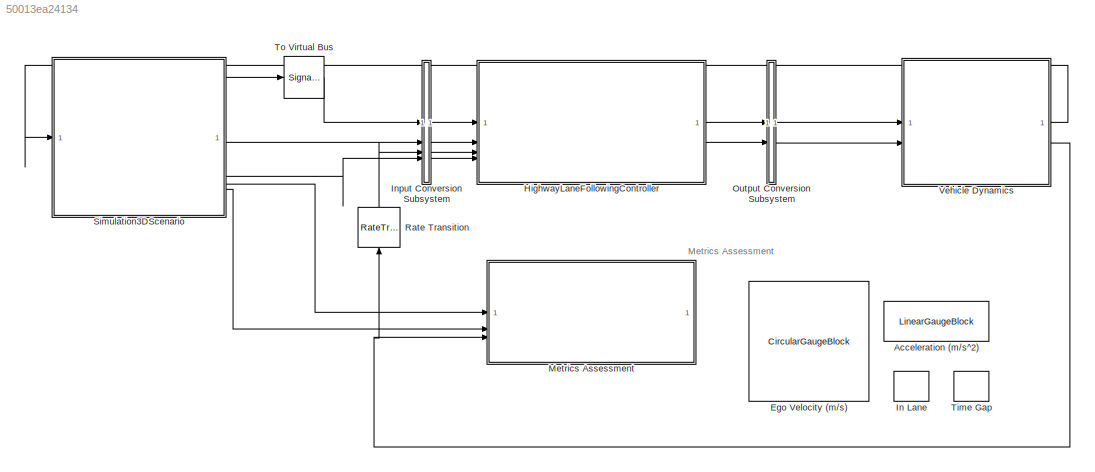
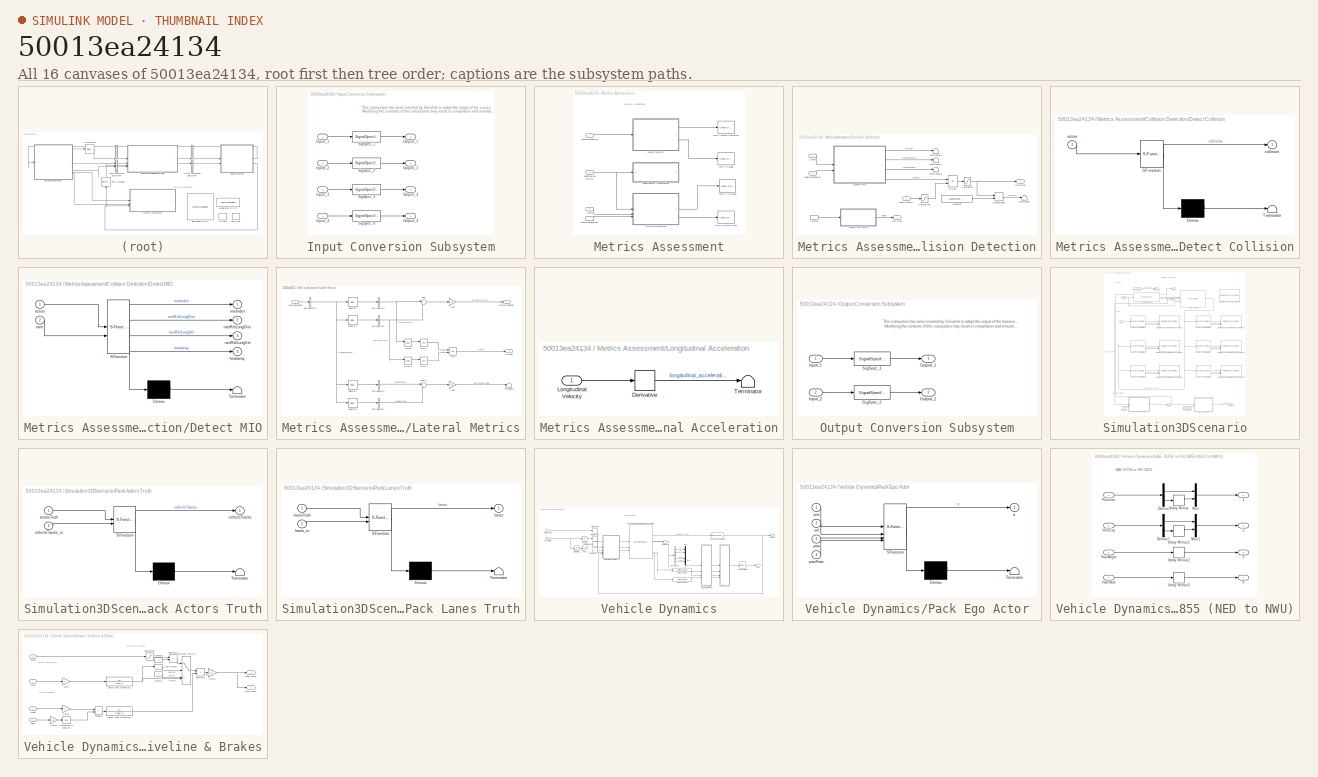
[diagram: thumbnail index - all 16 canvases of the model, root first then tree order]
MODEL slx_50013ea24134
KIND model
CONFIG AbsTol = auto
CONFIG EnableMultiTasking = on
CONFIG FixedStep = auto
CONFIG MaxStep = auto
CONFIG MinStep = auto
CONFIG PostLoadFcn = [scenario, assessment] = scenario_LFACC_03_Curve_StopnGo();\nvehSim3D=  vehicleSim3DParams(scenario);\negoVehDyn = egoVehicleDynamicsParams(scenario);\nv_set=  egoVehDyn.VLong0;\n\n%%\nblkSim3DConfig = "HighwayLaneFollowingControllerAssessment/Simulation3DScenario/Simulation3DSceneConfiguration";\nsetSim3DSceneDesc(blkSim3DConfig, scenario);\ninit_simulation_vars;
CONFIG RelTol = 1e-3
CONFIG SampleTimeConstraint = Unconstrained
CONFIG SolverName = ode23
CONFIG StartTime = 0.0
CONFIG StopTime = 10.0
BLOCK [LinearGaugeBlock] Acceleration (m//s^2)
  LabelPosition = Hide
  ScaleMax = 6
  ScaleMin = -6
BLOCK [CircularGaugeBlock] Ego Velocity (m//s)
  LabelPosition = Hide
  ScaleMax = 50
BLOCK [ModelReference] HighwayLaneFollowingController
  ModelNameDialog = HighwayLaneFollowingController
  ModelReferenceVersion = 8.0
BLOCK [LampBlock] In Lane
  LabelPosition = Hide
BLOCK [SubSystem] Input Conversion Subsystem
  AttributesFormatString = %<Description>
  Description = Signal spec.\nand routing
  Permissions = ReadOnly
  PermitHierarchicalResolution = ExplicitOnly
  Tag = __SLT_ICS__
  UserDataPersistent = on
BLOCK [Inport] Input Conversion Subsystem/Inport_1
BLOCK [Inport] Input Conversion Subsystem/Inport_2
  Port = 2
BLOCK [Inport] Input Conversion Subsystem/Inport_3
  Port = 3
BLOCK [Inport] Input Conversion Subsystem/Inport_4
  Port = 4
BLOCK [Outport] Input Conversion Subsystem/Outport_1
BLOCK [Outport] Input Conversion Subsystem/Outport_2
  Port = 2
BLOCK [Outport] Input Conversion Subsystem/Outport_3
  Port = 3
BLOCK [Outport] Input Conversion Subsystem/Outport_4
  Port = 4
BLOCK [SignalSpecification] Input Conversion Subsystem/SigSpec_1
  OutDataTypeStr = Bus: LaneSensor
  SampleTime = 0.1
BLOCK [SignalSpecification] Input Conversion Subsystem/SigSpec_2
  BusOutputAsStruct = on
  Dimensions = [1, 1]
  OutDataTypeStr = Bus: BusMultiObjectTracker
  SampleTime = 0.1
  SignalType = real
  VarSizeSig = No
BLOCK [SignalSpecification] Input Conversion Subsystem/SigSpec_3
  Dimensions = [1]
  OutDataTypeStr = double
  SampleTime = 0.1
  SignalType = real
  Unit = m/s
  VarSizeSig = No
BLOCK [SignalSpecification] Input Conversion Subsystem/SigSpec_4
  Dimensions = [1]
  OutDataTypeStr = double
  SampleTime = 0.1
  SignalType = real
  Unit = m/s
  VarSizeSig = No
BLOCK [SubSystem] Metrics Assessment
BLOCK [Inport] Metrics Assessment/Actors
  Port = 2
BLOCK [SubSystem] Metrics Assessment/Collision Detection
BLOCK [Inport] Metrics Assessment/Collision Detection/Actors
  Port = 2
BLOCK [InportShadow] Metrics Assessment/Collision Detection/Actors1
  Port = 2
BLOCK [Outport] Metrics Assessment/Collision Detection/Collision
  Port = 2
BLOCK [Constant] Metrics Assessment/Collision Detection/Constant
  Value = assessment.TimeGap
BLOCK [SubSystem] Metrics Assessment/Collision Detection/Detect Collision
  AttributesFormatString = ------------------------------------------\nvehicleProfiles = %<vehicleProfiles>
  ErrorFcn = Stateflow.Translate.translate
  PermitHierarchicalResolution = ExplicitOnly
  SFBlockType = MATLAB Function
  TreatAsAtomicUnit = on
BLOCK [Demux] Metrics Assessment/Collision Detection/Detect Collision/ Demux 
  Outputs = 1
BLOCK [S-Function] Metrics Assessment/Collision Detection/Detect Collision/ SFunction 
  EnableBusSupport = off
  FunctionName = sf_sfun
  Parameters = vehicleProfiles
  PortCounts = [1 2]
  SFcnIsStateOwnerBlock = off
  SFunctionDeploymentMode = off
  Tag = Stateflow S-Function 4
BLOCK [Terminator] Metrics Assessment/Collision Detection/Detect Collision/ Terminator 
BLOCK [Inport] Metrics Assessment/Collision Detection/Detect Collision/actors
BLOCK [Outport] Metrics Assessment/Collision Detection/Detect Collision/collision
BLOCK [SubSystem] Metrics Assessment/Collision Detection/Detect MIO
  AttributesFormatString = ------------------------------------------\nvehicleProfiles = %<vehicleProfiles>
  ErrorFcn = Stateflow.Translate.translate
  PermitHierarchicalResolution = ExplicitOnly
  SFBlockType = MATLAB Function
  TreatAsAtomicUnit = on
BLOCK [Demux] Metrics Assessment/Collision Detection/Detect MIO/ Demux 
  Outputs = 1
BLOCK [S-Function] Metrics Assessment/Collision Detection/Detect MIO/ SFunction 
  EnableBusSupport = off
  FunctionName = sf_sfun
  Parameters = vehicleProfiles
  PortCounts = [2 5]
  SFcnIsStateOwnerBlock = off
  SFunctionDeploymentMode = off
  Tag = Stateflow S-Function 5
BLOCK [Terminator] Metrics Assessment/Collision Detection/Detect MIO/ Terminator 
BLOCK [Inport] Metrics Assessment/Collision Detection/Detect MIO/actors
BLOCK [Outport] Metrics Assessment/Collision Detection/Detect MIO/headway
  Port = 4
  VectorParamsAs1DForOutWhenUnconnected = off
BLOCK [Inport] Metrics Assessment/Collision Detection/Detect MIO/lane
  Port = 2
BLOCK [Outport] Metrics Assessment/Collision Detection/Detect MIO/mioIndex
BLOCK [Outport] Metrics Assessment/Collision Detection/Detect MIO/mioRelLongDist
  Port = 2
  VectorParamsAs1DForOutWhenUnconnected = off
BLOCK [Outport] Metrics Assessment/Collision Detection/Detect MIO/mioRelLongVel
  Port = 3
BLOCK [Product] Metrics Assessment/Collision Detection/Divide
  Inputs = */
BLOCK [Inport] Metrics Assessment/Collision Detection/Ego Velocity
BLOCK [RelationalOperator] Metrics Assessment/Collision Detection/GreaterThan
  InputSameDT = off
  Operator = >
  OutDataTypeStr = boolean
  RndMeth = Simplest
BLOCK [Inport] Metrics Assessment/Collision Detection/Lane Boundaries
  Port = 3
BLOCK [Saturate] Metrics Assessment/Collision Detection/Saturation
  LowerLimit = 0
  UpperLimit = 4
BLOCK [Saturate] Metrics Assessment/Collision Detection/Saturation1
  LowerLimit = 0.01
  UpperLimit = 100
BLOCK [Terminator] Metrics Assessment/Collision Detection/Terminator
BLOCK [Terminator] Metrics Assessment/Collision Detection/Terminator1
BLOCK [Terminator] Metrics Assessment/Collision Detection/Terminator2
BLOCK [Terminator] Metrics Assessment/Collision Detection/Terminator3
BLOCK [Outport] Metrics Assessment/Collision Detection/Time Gap
BLOCK [Inport] Metrics Assessment/Lane Boundaries
BLOCK [InportShadow] Metrics Assessment/Lane Boundaries1
BLOCK [SubSystem] Metrics Assessment/Lateral Metrics
BLOCK [Logic] Metrics Assessment/Lateral Metrics/AND
  AllPortsSameDT = off
  IconShape = distinctive
  OutDataTypeStr = boolean
BLOCK [Logic] Metrics Assessment/Lateral Metrics/AND1
  AllPortsSameDT = off
  IconShape = distinctive
  Operator = NOT
  OutDataTypeStr = boolean
BLOCK [Logic] Metrics Assessment/Lateral Metrics/AND2
  AllPortsSameDT = off
  IconShape = distinctive
  Operator = NOT
  OutDataTypeStr = boolean
BLOCK [BusSelector] Metrics Assessment/Lateral Metrics/Bus Selector3
  OutputSignals = LaneBoundaries
BLOCK [BusSelector] Metrics Assessment/Lateral Metrics/Bus Selector4
  OutputSignals = LateralOffset
BLOCK [BusSelector] Metrics Assessment/Lateral Metrics/Bus Selector5
  OutputSignals = LateralOffset
BLOCK [BusSelector] Metrics Assessment/Lateral Metrics/Bus Selector6
  OutputSignals = HeadingAngle
BLOCK [BusSelector] Metrics Assessment/Lateral Metrics/Bus Selector7
  OutputSignals = HeadingAngle
BLOCK [Gain] Metrics Assessment/Lateral Metrics/Gain
  Gain = -0.5
BLOCK [Gain] Metrics Assessment/Lateral Metrics/Gain1
  Gain = -0.5
BLOCK [Outport] Metrics Assessment/Lateral Metrics/In Lane
  Port = 2
BLOCK [RelationalOperator] Metrics Assessment/Lateral Metrics/IsNaN
  InputSameDT = off
  Operator = isNaN
  OutDataTypeStr = boolean
  RndMeth = Simplest
BLOCK [RelationalOperator] Metrics Assessment/Lateral Metrics/IsNaN1
  InputSameDT = off
  Operator = isNaN
  OutDataTypeStr = boolean
  RndMeth = Simplest
BLOCK [Inport] Metrics Assessment/Lateral Metrics/Lane Boundaries
BLOCK [Outport] Metrics Assessment/Lateral Metrics/Lateral Deviation
  VectorParamsAs1DForOutWhenUnconnected = off
BLOCK [Selector] Metrics Assessment/Lateral Metrics/Selector2
  IndexOptions = Index vector (dialog)
  Indices = 1
  InputPortWidth = 2
  OutputSizes = 1
BLOCK [Selector] Metrics Assessment/Lateral Metrics/Selector3
  IndexOptions = Index vector (dialog)
  Indices = 2
  InputPortWidth = 2
  OutputSizes = 1
BLOCK [Selector] Metrics Assessment/Lateral Metrics/Selector4
  IndexOptions = Index vector (dialog)
  Indices = 1
  InputPortWidth = 2
  OutputSizes = 1
BLOCK [Selector] Metrics Assessment/Lateral Metrics/Selector5
  IndexOptions = Index vector (dialog)
  Indices = 2
  InputPortWidth = 2
  OutputSizes = 1
BLOCK [Sum] Metrics Assessment/Lateral Metrics/Sum
  Inputs = |++
BLOCK [Sum] Metrics Assessment/Lateral Metrics/Sum1
  Inputs = |++
BLOCK [Terminator] Metrics Assessment/Lateral Metrics/Terminator
BLOCK [SubSystem] Metrics Assessment/Longitudinal Acceleration
BLOCK [Derivative] Metrics Assessment/Longitudinal Acceleration/Derivative
BLOCK [Inport] Metrics Assessment/Longitudinal Acceleration/Longitudinal Velocity
BLOCK [Terminator] Metrics Assessment/Longitudinal Acceleration/Terminator
BLOCK [Inport] Metrics Assessment/Longitudinal Velocity
  Port = 3
BLOCK [Reference] Metrics Assessment/Verify In Lane  REF=simulink/Model
Verification/Check 
Static Range
  Description = 1 <= u <= 1
  SourceBlock = simulink/Model\nVerification/Check \nStatic Range
  SourceType = Checks_SRange
BLOCK [Reference] Metrics Assessment/Verify Lateral Deviation  REF=simulink/Model
Verification/Check 
Static Range
  AttributesFormatString = ---------------------------------------\nmax = %<max>\nmin = %<min>
  Description = -assessment.LateralDeviationMax <= u <= assessment.LateralDeviationMax
  SourceBlock = simulink/Model\nVerification/Check \nStatic Range
  SourceType = Checks_SRange
BLOCK [Reference] Metrics Assessment/Verify No Collision  REF=simulink/Model
Verification/Check 
Static Range
  Description = 0 <= u <= 0
  SourceBlock = simulink/Model\nVerification/Check \nStatic Range
  SourceType = Checks_SRange
BLOCK [Reference] Metrics Assessment/Verify Time gap  REF=simulink/Model
Verification/Check Static 
Lower Bound
  AttributesFormatString = ---------------------------------------\nmin = %<min>
  Description = assessment.TimeGap <= u
  SourceBlock = simulink/Model\nVerification/Check Static \nLower Bound
  SourceType = Checks_SMin
BLOCK [SubSystem] Output Conversion Subsystem
  AttributesFormatString = %<Description>
  Description = Signal spec.\nand routing
  Permissions = ReadOnly
  PermitHierarchicalResolution = ExplicitOnly
  Tag = __SLT_OCS__
  UserDataPersistent = on
BLOCK [Inport] Output Conversion Subsystem/Inport_1
BLOCK [Inport] Output Conversion Subsystem/Inport_2
  Port = 2
BLOCK [Outport] Output Conversion Subsystem/Outport_1
BLOCK [Outport] Output Conversion Subsystem/Outport_2
  Port = 2
BLOCK [SignalSpecification] Output Conversion Subsystem/SigSpec_1
  Dimensions = [1]
  OutDataTypeStr = double
  SampleTime = 0.1
  SignalType = real
  Unit = rad
  VarSizeSig = No
BLOCK [SignalSpecification] Output Conversion Subsystem/SigSpec_2
  Dimensions = [1]
  OutDataTypeStr = double
  SampleTime = 0.1
  SignalType = real
  Unit = m/s^2
  VarSizeSig = No
BLOCK [RateTransition] Rate Transition
  NameLocation = right
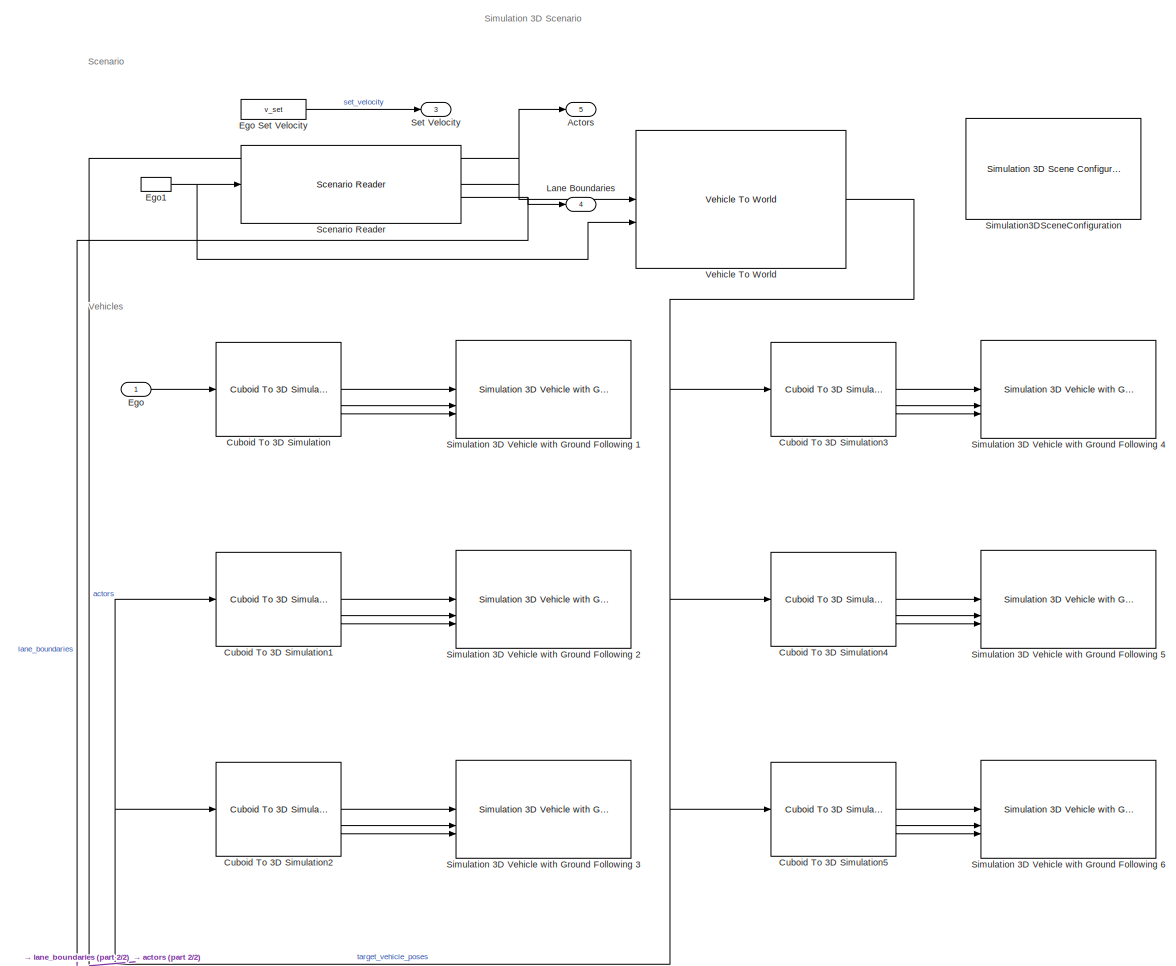
[diagram: Simulation3DScenario - part 1/2, most of the canvas]
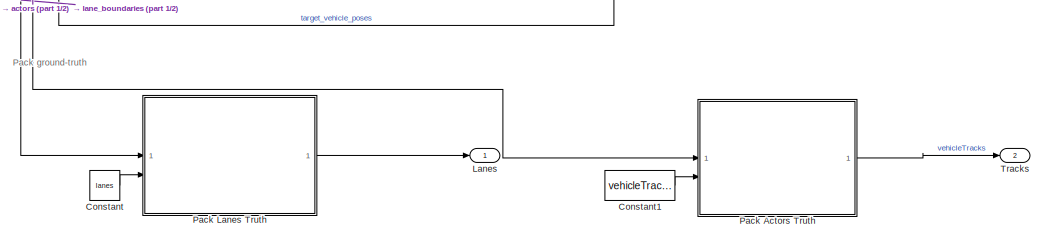
[diagram: Simulation3DScenario - part 2/2, full width, bottom band]
BLOCK [SubSystem] Simulation3DScenario
  VariantControl = 1
BLOCK [Outport] Simulation3DScenario/Actors
  Port = 5
BLOCK [Constant] Simulation3DScenario/Constant
  OutDataTypeStr = Bus: LaneSensor
  Value = lanes
BLOCK [Constant] Simulation3DScenario/Constant1
  OutDataTypeStr = Bus: BusMultiObjectTracker
  Value = vehicleTracks
  VectorParams1D = off
BLOCK [Reference] Simulation3DScenario/Cuboid To 3D Simulation  REF=drivingscenarioandsensors/Cuboid To 3D Simulation
  SourceBlock = drivingscenarioandsensors/Cuboid To 3D Simulation
  SourceType = driving.scenario.internal.CuboidTo3DSimulation
BLOCK [Reference] Simulation3DScenario/Cuboid To 3D Simulation1  REF=drivingscenarioandsensors/Cuboid To 3D Simulation
  SourceBlock = drivingscenarioandsensors/Cuboid To 3D Simulation
  SourceType = driving.scenario.internal.CuboidTo3DSimulation
BLOCK [Reference] Simulation3DScenario/Cuboid To 3D Simulation2  REF=drivingscenarioandsensors/Cuboid To 3D Simulation
  SourceBlock = drivingscenarioandsensors/Cuboid To 3D Simulation
  SourceType = driving.scenario.internal.CuboidTo3DSimulation
BLOCK [Reference] Simulation3DScenario/Cuboid To 3D Simulation3  REF=drivingscenarioandsensors/Cuboid To 3D Simulation
  SourceBlock = drivingscenarioandsensors/Cuboid To 3D Simulation
  SourceType = driving.scenario.internal.CuboidTo3DSimulation
BLOCK [Reference] Simulation3DScenario/Cuboid To 3D Simulation4  REF=drivingscenarioandsensors/Cuboid To 3D Simulation
  SourceBlock = drivingscenarioandsensors/Cuboid To 3D Simulation
  SourceType = driving.scenario.internal.CuboidTo3DSimulation
BLOCK [Reference] Simulation3DScenario/Cuboid To 3D Simulation5  REF=drivingscenarioandsensors/Cuboid To 3D Simulation
  SourceBlock = drivingscenarioandsensors/Cuboid To 3D Simulation
  SourceType = driving.scenario.internal.CuboidTo3DSimulation
BLOCK [Inport] Simulation3DScenario/Ego
BLOCK [Constant] Simulation3DScenario/Ego Set Velocity
  SampleTime = Ts
  Value = v_set
BLOCK [InportShadow] Simulation3DScenario/Ego1
BLOCK [Outport] Simulation3DScenario/Lane Boundaries
  Port = 4
BLOCK [Outport] Simulation3DScenario/Lanes
  OutDataTypeStr = Bus: LaneSensor
BLOCK [SubSystem] Simulation3DScenario/Pack Actors Truth
  ErrorFcn = Stateflow.Translate.translate
  PermitHierarchicalResolution = ExplicitOnly
  SFBlockType = MATLAB Function
  TreatAsAtomicUnit = on
BLOCK [Demux] Simulation3DScenario/Pack Actors Truth/ Demux 
  Outputs = 1
BLOCK [S-Function] Simulation3DScenario/Pack Actors Truth/ SFunction 
  EnableBusSupport = off
  FunctionName = sf_sfun
  PortCounts = [2 2]
  SFcnIsStateOwnerBlock = off
  SFunctionDeploymentMode = off
  Tag = Stateflow S-Function 2
BLOCK [Terminator] Simulation3DScenario/Pack Actors Truth/ Terminator 
BLOCK [Inport] Simulation3DScenario/Pack Actors Truth/actorsTruth
BLOCK [Outport] Simulation3DScenario/Pack Actors Truth/vehicleTracks
BLOCK [Inport] Simulation3DScenario/Pack Actors Truth/vehicleTracks_in
  Port = 2
BLOCK [SubSystem] Simulation3DScenario/Pack Lanes Truth
  ErrorFcn = Stateflow.Translate.translate
  PermitHierarchicalResolution = ExplicitOnly
  SFBlockType = MATLAB Function
  TreatAsAtomicUnit = on
BLOCK [Demux] Simulation3DScenario/Pack Lanes Truth/ Demux 
  Outputs = 1
BLOCK [S-Function] Simulation3DScenario/Pack Lanes Truth/ SFunction 
  EnableBusSupport = off
  FunctionName = sf_sfun
  PortCounts = [2 2]
  SFcnIsStateOwnerBlock = off
  SFunctionDeploymentMode = off
  Tag = Stateflow S-Function 1
BLOCK [Terminator] Simulation3DScenario/Pack Lanes Truth/ Terminator 
BLOCK [Outport] Simulation3DScenario/Pack Lanes Truth/lanes
BLOCK [Inport] Simulation3DScenario/Pack Lanes Truth/lanesTruth
BLOCK [Inport] Simulation3DScenario/Pack Lanes Truth/lanes_in
  Port = 2
BLOCK [Reference] Simulation3DScenario/Scenario Reader  REF=drivingscenarioandsensors/Scenario Reader
  SourceBlock = drivingscenarioandsensors/Scenario Reader
  SourceType = driving.scenario.internal.ScenarioReader
BLOCK [Outport] Simulation3DScenario/Set Velocity
  Port = 3
  Unit = m/s
  VectorParamsAs1DForOutWhenUnconnected = off
BLOCK [Reference] Simulation3DScenario/Simulation 3D Vehicle with Ground Following 1  REF=sim3dautolib/Simulation 3D Vehicle with Ground Following
  AttributesFormatString = --------------------------------------\nActorName = %<ActorName>\nPassVehMesh = %<PassVehMesh>\nVehColor = %<VehColor>\nInitialPos = %<InitialPos>\nInitialRot = %<InitialRot>\nPriority = %<Priority>  <repeated x6 — deduplicated; at blocks: Simulation 3D Vehicle with Ground Following 1, Simulation 3D Vehicle with Ground Following 2, Simulation 3D Vehicle with Ground Following 3, Simulation 3D Vehicle with Ground Following 4, Simulation 3D Vehicle with Ground Following 5, Simulation 3D Vehicle with Ground Following 6>
  Priority = -1
  SourceBlock = sim3dautolib/Simulation 3D Vehicle with Ground Following
  SourceType = Simulation 3D Vehicle with Ground Following
BLOCK [Reference] Simulation3DScenario/Simulation 3D Vehicle with Ground Following 2  REF=sim3dautolib/Simulation 3D Vehicle with Ground Following
  Priority = -1
  SourceBlock = sim3dautolib/Simulation 3D Vehicle with Ground Following
  SourceType = Simulation 3D Vehicle with Ground Following
BLOCK [Reference] Simulation3DScenario/Simulation 3D Vehicle with Ground Following 3  REF=sim3dautolib/Simulation 3D Vehicle with Ground Following
  Priority = -1
  SourceBlock = sim3dautolib/Simulation 3D Vehicle with Ground Following
  SourceType = Simulation 3D Vehicle with Ground Following
BLOCK [Reference] Simulation3DScenario/Simulation 3D Vehicle with Ground Following 4  REF=sim3dautolib/Simulation 3D Vehicle with Ground Following
  Priority = -1
  SourceBlock = sim3dautolib/Simulation 3D Vehicle with Ground Following
  SourceType = Simulation 3D Vehicle with Ground Following
BLOCK [Reference] Simulation3DScenario/Simulation 3D Vehicle with Ground Following 5  REF=sim3dautolib/Simulation 3D Vehicle with Ground Following
  Priority = -1
  SourceBlock = sim3dautolib/Simulation 3D Vehicle with Ground Following
  SourceType = Simulation 3D Vehicle with Ground Following
BLOCK [Reference] Simulation3DScenario/Simulation 3D Vehicle with Ground Following 6  REF=sim3dautolib/Simulation 3D Vehicle with Ground Following
  Priority = -1
  SourceBlock = sim3dautolib/Simulation 3D Vehicle with Ground Following
  SourceType = Simulation 3D Vehicle with Ground Following
BLOCK [Reference] Simulation3DScenario/Simulation3DSceneConfiguration  REF=sim3dlib/Simulation 3D Scene Configuration
  AttributesFormatString = -------------------------------------\nSceneName = %<SceneDesc>\nPriority = %<Priority>\nProjectFormat = %<ProjectFormat>
  Priority = 0
  SourceBlock = sim3dlib/Simulation 3D Scene Configuration
  SourceType = Simulation 3D Scene Configuration
BLOCK [Outport] Simulation3DScenario/Tracks
  OutDataTypeStr = Bus: BusMultiObjectTracker
  Port = 2
BLOCK [Reference] Simulation3DScenario/Vehicle To World  REF=drivingscenarioandsensors/Vehicle To World
  SourceBlock = drivingscenarioandsensors/Vehicle To World
  SourceType = driving.scenario.internal.VehicleToWorld
BLOCK [LampBlock] Time Gap
  LabelPosition = Hide
BLOCK [SignalConversion] To Virtual Bus
  ConversionOutput = Virtual bus
  OverrideOpt = off
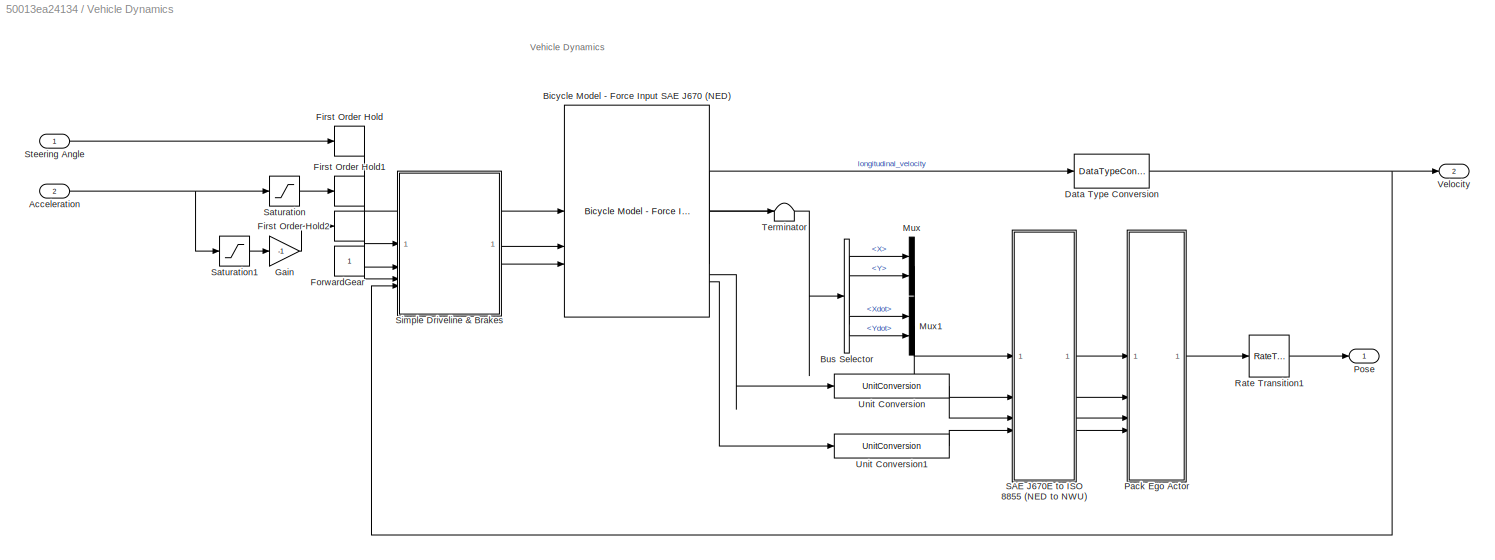
BLOCK [SubSystem] Vehicle Dynamics
  VariantControl = Variant2
BLOCK [Inport] Vehicle Dynamics/Acceleration
  Port = 2
  Unit = m/s^2
BLOCK [Reference] Vehicle Dynamics/Bicycle Model - Force Input SAE J670 (NED)  REF=autolibshared/Bicycle Model - Force Input
  AttributesFormatString = ---------------------------------\nX_o = %<X_o>\nY_o = %<Y_o>\npsi_o = %<psi_o>\nxdot_o = %<xdot_o>\nydot_o = %<ydot_o>
  SourceBlock = autolibshared/Bicycle Model - Force Input
  SourceType = Vehicle Body 3DOF Lateral
BLOCK [BusSelector] Vehicle Dynamics/Bus Selector
  OutputSignals = InertFrm.RearAxl.Disp.X,InertFrm.RearAxl.Disp.Y,InertFrm.RearAxl.Vel.Xdot,InertFrm.RearAxl.Vel.Ydot
BLOCK [DataTypeConversion] Vehicle Dynamics/Data Type Conversion
  OutDataTypeStr = double
  RndMeth = Floor
  SaturateOnIntegerOverflow = off
BLOCK [FirstOrderHold] Vehicle Dynamics/First Order Hold
  ErrorTolerance = inf
BLOCK [FirstOrderHold] Vehicle Dynamics/First Order Hold1
  ErrorTolerance = inf
BLOCK [FirstOrderHold] Vehicle Dynamics/First Order Hold2
  ErrorTolerance = inf
BLOCK [Constant] Vehicle Dynamics/ForwardGear
  SampleTime = Ts
BLOCK [Gain] Vehicle Dynamics/Gain
  Gain = -1
BLOCK [Mux] Vehicle Dynamics/Mux
  DisplayOption = bar
  Inputs = 2
BLOCK [Mux] Vehicle Dynamics/Mux1
  DisplayOption = bar
  Inputs = 2
BLOCK [SubSystem] Vehicle Dynamics/Pack Ego Actor
  ErrorFcn = Stateflow.Translate.translate
  PermitHierarchicalResolution = ExplicitOnly
  SFBlockType = MATLAB Function
  TreatAsAtomicUnit = on
BLOCK [Demux] Vehicle Dynamics/Pack Ego Actor/ Demux 
  Outputs = 1
BLOCK [S-Function] Vehicle Dynamics/Pack Ego Actor/ SFunction 
  EnableBusSupport = off
  FunctionName = sf_sfun
  PortCounts = [4 2]
  SFcnIsStateOwnerBlock = off
  SFunctionDeploymentMode = off
  Tag = Stateflow S-Function 3
BLOCK [Terminator] Vehicle Dynamics/Pack Ego Actor/ Terminator 
BLOCK [Outport] Vehicle Dynamics/Pack Ego Actor/a
  VectorParamsAs1DForOutWhenUnconnected = off
BLOCK [Inport] Vehicle Dynamics/Pack Ego Actor/pos
BLOCK [Inport] Vehicle Dynamics/Pack Ego Actor/vel
  Port = 2
BLOCK [Inport] Vehicle Dynamics/Pack Ego Actor/yaw
  Port = 3
BLOCK [Inport] Vehicle Dynamics/Pack Ego Actor/yawRate
  Port = 4
BLOCK [Outport] Vehicle Dynamics/Pose
  OutDataTypeStr = Bus: BusVehiclePose
  VectorParamsAs1DForOutWhenUnconnected = off
BLOCK [RateTransition] Vehicle Dynamics/Rate Transition1
  OutPortSampleTime = Ts
BLOCK [SubSystem] Vehicle Dynamics/SAE J670E to ISO 8855 (NED to NWU)
BLOCK [Outport] Vehicle Dynamics/SAE J670E to ISO 8855 (NED to NWU)/1
  VectorParamsAs1DForOutWhenUnconnected = off
BLOCK [Outport] Vehicle Dynamics/SAE J670E to ISO 8855 (NED to NWU)/2
  Port = 2
  VectorParamsAs1DForOutWhenUnconnected = off
BLOCK [Outport] Vehicle Dynamics/SAE J670E to ISO 8855 (NED to NWU)/3
  Port = 3
  VectorParamsAs1DForOutWhenUnconnected = off
BLOCK [Outport] Vehicle Dynamics/SAE J670E to ISO 8855 (NED to NWU)/4
  Port = 4
  VectorParamsAs1DForOutWhenUnconnected = off
BLOCK [Demux] Vehicle Dynamics/SAE J670E to ISO 8855 (NED to NWU)/Demux
  Outputs = 2
BLOCK [Demux] Vehicle Dynamics/SAE J670E to ISO 8855 (NED to NWU)/Demux1
  Outputs = 2
BLOCK [Mux] Vehicle Dynamics/SAE J670E to ISO 8855 (NED to NWU)/Mux
  DisplayOption = bar
  Inputs = 2
BLOCK [Mux] Vehicle Dynamics/SAE J670E to ISO 8855 (NED to NWU)/Mux1
  DisplayOption = bar
  Inputs = 2
BLOCK [Inport] Vehicle Dynamics/SAE J670E to ISO 8855 (NED to NWU)/Position
  Unit = m
BLOCK [UnaryMinus] Vehicle Dynamics/SAE J670E to ISO 8855 (NED to NWU)/Unary Minus
BLOCK [UnaryMinus] Vehicle Dynamics/SAE J670E to ISO 8855 (NED to NWU)/Unary Minus1
BLOCK [UnaryMinus] Vehicle Dynamics/SAE J670E to ISO 8855 (NED to NWU)/Unary Minus2
BLOCK [UnaryMinus] Vehicle Dynamics/SAE J670E to ISO 8855 (NED to NWU)/Unary Minus3
BLOCK [Inport] Vehicle Dynamics/SAE J670E to ISO 8855 (NED to NWU)/Velocity
  Port = 2
  Unit = m/s
BLOCK [Inport] Vehicle Dynamics/SAE J670E to ISO 8855 (NED to NWU)/Yaw Angle
  Port = 3
  Unit = deg
BLOCK [Inport] Vehicle Dynamics/SAE J670E to ISO 8855 (NED to NWU)/Yaw Rate
  Port = 4
  Unit = deg/s
BLOCK [Saturate] Vehicle Dynamics/Saturation
  LowerLimit = 0
  UpperLimit = max_ac
BLOCK [Saturate] Vehicle Dynamics/Saturation1
  LowerLimit = max_dc
  UpperLimit = 0
BLOCK [SubSystem] Vehicle Dynamics/Simple Driveline & Brakes
BLOCK [Inport] Vehicle Dynamics/Simple Driveline & Brakes/Accel
  NameLocation = top
BLOCK [Constant] Vehicle Dynamics/Simple Driveline & Brakes/Constant
BLOCK [Inport] Vehicle Dynamics/Simple Driveline & Brakes/Decel
  NameLocation = top
  Port = 2
BLOCK [Outport] Vehicle Dynamics/Simple Driveline & Brakes/Front Force
  VectorParamsAs1DForOutWhenUnconnected = off
BLOCK [Gain] Vehicle Dynamics/Simple Driveline & Brakes/Gain
  Gain = m
BLOCK [Gain] Vehicle Dynamics/Simple Driveline & Brakes/Gain1
  Gain = 0.8
BLOCK [Gain] Vehicle Dynamics/Simple Driveline & Brakes/Gain2
  Gain = m
BLOCK [Gain] Vehicle Dynamics/Simple Driveline & Brakes/Gain3
  Gain = 0.5
BLOCK [Inport] Vehicle Dynamics/Simple Driveline & Brakes/Gear
  Port = 3
BLOCK [TransferFcn] Vehicle Dynamics/Simple Driveline & Brakes/Lower level dynamics1
  Denominator = [tau 1]
BLOCK [TransferFcn] Vehicle Dynamics/Simple Driveline & Brakes/Lower level dynamics2
  Denominator = [tau2 1]
BLOCK [MultiPortSwitch] Vehicle Dynamics/Simple Driveline & Brakes/Multiport Switch
  DataPortOrder = Zero-based contiguous
  InputSameDT = off
  SaturateOnIntegerOverflow = off
  zeroidx = on
BLOCK [Constant] Vehicle Dynamics/Simple Driveline & Brakes/Neutral
  Value = 0
BLOCK [Product] Vehicle Dynamics/Simple Driveline & Brakes/Product
BLOCK [Outport] Vehicle Dynamics/Simple Driveline & Brakes/Rear Force
  Port = 2
  VectorParamsAs1DForOutWhenUnconnected = off
BLOCK [Saturate] Vehicle Dynamics/Simple Driveline & Brakes/Saturation
  LowerLimit = -1
  UpperLimit = 1
  ZeroCross = off
BLOCK [Sum] Vehicle Dynamics/Simple Driveline & Brakes/Subtract1
  IconShape = rectangular
  Inputs = +-
BLOCK [Sum] Vehicle Dynamics/Simple Driveline & Brakes/Subtract2
  IconShape = rectangular
BLOCK [Trigonometry] Vehicle Dynamics/Simple Driveline & Brakes/Trigonometric Function
  Operator = tanh
BLOCK [UnaryMinus] Vehicle Dynamics/Simple Driveline & Brakes/Unary Minus
BLOCK [Inport] Vehicle Dynamics/Simple Driveline & Brakes/xdot
  Port = 4
BLOCK [Inport] Vehicle Dynamics/Steering Angle
  Unit = rad
BLOCK [Terminator] Vehicle Dynamics/Terminator
BLOCK [UnitConversion] Vehicle Dynamics/Unit Conversion
  OutputType = Inherit: Inherit via back propagation
BLOCK [UnitConversion] Vehicle Dynamics/Unit Conversion1
  OutputType = Inherit: Inherit via back propagation
BLOCK [Outport] Vehicle Dynamics/Velocity
  OutDataTypeStr = double
  Port = 2
  Unit = m/s
  VectorParamsAs1DForOutWhenUnconnected = off
ANNOTATION (root): Metrics Assessment
ANNOTATION Input Conversion Subsystem: This subsystem has been inserted by Simulink to adapt the output of the source blocks to the interface required by the harnessed component. Modifying the contents of this subsystem may result in compilation and simulation failure.
ANNOTATION Metrics Assessment: Metrics Assessment
ANNOTATION Output Conversion Subsystem: This subsystem has been inserted by Simulink to adapt the output of the harnessed component to the interface required by the sink blocks. Modifying the contents of this subsystem may result in compilation and simulation failure.
ANNOTATION Simulation3DScenario: Simulation 3D Scenario
ANNOTATION Simulation3DScenario: Pack ground-truth
ANNOTATION Simulation3DScenario: Scenario
ANNOTATION Simulation3DScenario: Vehicles
ANNOTATION Vehicle Dynamics: Vehicle Dynamics
ANNOTATION Vehicle Dynamics/SAE J670E to ISO 8855 (NED to NWU): SAE J670E to ISO 8855
ANNOTATION Vehicle Dynamics/Simple Driveline & Brakes: Trivial Braking
ANNOTATION Vehicle Dynamics/Simple Driveline & Brakes: Trivial Driveline
ANNOTATION Vehicle Dynamics/Simple Driveline & Brakes: Trivial Powertrain
LINE HighwayLaneFollowingController:1 -> Output Conversion Subsystem:1
LINE HighwayLaneFollowingController:2 -> Output Conversion Subsystem:2
LINE Input Conversion Subsystem/Inport_1:1 -> Input Conversion Subsystem/SigSpec_1:1
LINE Input Conversion Subsystem/Inport_2:1 -> Input Conversion Subsystem/SigSpec_2:1
LINE Input Conversion Subsystem/Inport_3:1 -> Input Conversion Subsystem/SigSpec_3:1
LINE Input Conversion Subsystem/Inport_4:1 -> Input Conversion Subsystem/SigSpec_4:1
LINE Input Conversion Subsystem/SigSpec_1:1 -> Input Conversion Subsystem/Outport_1:1
LINE Input Conversion Subsystem/SigSpec_2:1 -> Input Conversion Subsystem/Outport_2:1
LINE Input Conversion Subsystem/SigSpec_3:1 -> Input Conversion Subsystem/Outport_3:1
LINE Input Conversion Subsystem/SigSpec_4:1 -> Input Conversion Subsystem/Outport_4:1
LINE Input Conversion Subsystem:1 -> HighwayLaneFollowingController:1
LINE Input Conversion Subsystem:2 -> HighwayLaneFollowingController:2
LINE Input Conversion Subsystem:3 -> HighwayLaneFollowingController:3
LINE Input Conversion Subsystem:4 -> HighwayLaneFollowingController:4
LINE Metrics Assessment/Actors:1 -> Metrics Assessment/Collision Detection:2
LINE Metrics Assessment/Collision Detection/Actors1:1 -> Metrics Assessment/Collision Detection/Detect Collision:1
LINE Metrics Assessment/Collision Detection/Actors:1 -> Metrics Assessment/Collision Detection/Detect MIO:1
LINE Metrics Assessment/Collision Detection/Constant:1 -> Metrics Assessment/Collision Detection/GreaterThan:2
LINE Metrics Assessment/Collision Detection/Detect Collision:1 -> Metrics Assessment/Collision Detection/Collision:1
LINE Metrics Assessment/Collision Detection/Detect MIO:1 -> Metrics Assessment/Collision Detection/Terminator2:1
LINE Metrics Assessment/Collision Detection/Detect MIO:2 -> Metrics Assessment/Collision Detection/Terminator1:1
LINE Metrics Assessment/Collision Detection/Detect MIO:3 -> Metrics Assessment/Collision Detection/Terminator3:1
LINE Metrics Assessment/Collision Detection/Detect MIO:4 -> Metrics Assessment/Collision Detection/Divide:1
LINE Metrics Assessment/Collision Detection/Divide:1 -> Metrics Assessment/Collision Detection/Saturation:1
LINE Metrics Assessment/Collision Detection/Ego Velocity:1 -> Metrics Assessment/Collision Detection/Saturation1:1
LINE Metrics Assessment/Collision Detection/GreaterThan:1 -> Metrics Assessment/Collision Detection/Terminator:1
LINE Metrics Assessment/Collision Detection/Lane Boundaries:1 -> Metrics Assessment/Collision Detection/Detect MIO:2
LINE Metrics Assessment/Collision Detection/Saturation1:1 -> Metrics Assessment/Collision Detection/Divide:2
NET Metrics Assessment/Collision Detection/Saturation:1 -> Metrics Assessment/Collision Detection/GreaterThan:1, Metrics Assessment/Collision Detection/Time Gap:1
LINE Metrics Assessment/Collision Detection:1 -> Metrics Assessment/Verify Time gap:1
LINE Metrics Assessment/Collision Detection:2 -> Metrics Assessment/Verify No Collision:1
LINE Metrics Assessment/Lane Boundaries1:1 -> Metrics Assessment/Collision Detection:3
LINE Metrics Assessment/Lane Boundaries:1 -> Metrics Assessment/Lateral Metrics:1
LINE Metrics Assessment/Lateral Metrics/AND1:1 -> Metrics Assessment/Lateral Metrics/AND:1
LINE Metrics Assessment/Lateral Metrics/AND2:1 -> Metrics Assessment/Lateral Metrics/AND:2
LINE Metrics Assessment/Lateral Metrics/AND:1 -> Metrics Assessment/Lateral Metrics/In Lane:1
NET Metrics Assessment/Lateral Metrics/Bus Selector3:1 -> Metrics Assessment/Lateral Metrics/Selector2:1, Metrics Assessment/Lateral Metrics/Selector3:1, Metrics Assessment/Lateral Metrics/Selector4:1, Metrics Assessment/Lateral Metrics/Selector5:1
NET Metrics Assessment/Lateral Metrics/Bus Selector4:1 -> Metrics Assessment/Lateral Metrics/IsNaN:1, Metrics Assessment/Lateral Metrics/Sum:1
NET Metrics Assessment/Lateral Metrics/Bus Selector5:1 -> Metrics Assessment/Lateral Metrics/IsNaN1:1, Metrics Assessment/Lateral Metrics/Sum:2
LINE Metrics Assessment/Lateral Metrics/Bus Selector6:1 -> Metrics Assessment/Lateral Metrics/Sum1:1
LINE Metrics Assessment/Lateral Metrics/Bus Selector7:1 -> Metrics Assessment/Lateral Metrics/Sum1:2
LINE Metrics Assessment/Lateral Metrics/Gain1:1 -> Metrics Assessment/Lateral Metrics/Terminator:1
LINE Metrics Assessment/Lateral Metrics/Gain:1 -> Metrics Assessment/Lateral Metrics/Lateral Deviation:1
LINE Metrics Assessment/Lateral Metrics/IsNaN1:1 -> Metrics Assessment/Lateral Metrics/AND2:1
LINE Metrics Assessment/Lateral Metrics/IsNaN:1 -> Metrics Assessment/Lateral Metrics/AND1:1
LINE Metrics Assessment/Lateral Metrics/Lane Boundaries:1 -> Metrics Assessment/Lateral Metrics/Bus Selector3:1
LINE Metrics Assessment/Lateral Metrics/Selector2:1 -> Metrics Assessment/Lateral Metrics/Bus Selector4:1
LINE Metrics Assessment/Lateral Metrics/Selector3:1 -> Metrics Assessment/Lateral Metrics/Bus Selector5:1
LINE Metrics Assessment/Lateral Metrics/Selector4:1 -> Metrics Assessment/Lateral Metrics/Bus Selector6:1
LINE Metrics Assessment/Lateral Metrics/Selector5:1 -> Metrics Assessment/Lateral Metrics/Bus Selector7:1
LINE Metrics Assessment/Lateral Metrics/Sum1:1 -> Metrics Assessment/Lateral Metrics/Gain1:1
LINE Metrics Assessment/Lateral Metrics/Sum:1 -> Metrics Assessment/Lateral Metrics/Gain:1
LINE Metrics Assessment/Lateral Metrics:1 -> Metrics Assessment/Verify Lateral Deviation:1
LINE Metrics Assessment/Lateral Metrics:2 -> Metrics Assessment/Verify In Lane:1
LINE Metrics Assessment/Longitudinal Acceleration/Derivative:1 -> Metrics Assessment/Longitudinal Acceleration/Terminator:1
LINE Metrics Assessment/Longitudinal Acceleration/Longitudinal Velocity:1 -> Metrics Assessment/Longitudinal Acceleration/Derivative:1
NET Metrics Assessment/Longitudinal Velocity:1 -> Metrics Assessment/Collision Detection:1, Metrics Assessment/Longitudinal Acceleration:1
LINE Output Conversion Subsystem/Inport_1:1 -> Output Conversion Subsystem/SigSpec_1:1
LINE Output Conversion Subsystem/Inport_2:1 -> Output Conversion Subsystem/SigSpec_2:1
LINE Output Conversion Subsystem/SigSpec_1:1 -> Output Conversion Subsystem/Outport_1:1
LINE Output Conversion Subsystem/SigSpec_2:1 -> Output Conversion Subsystem/Outport_2:1
LINE Output Conversion Subsystem:1 -> Vehicle Dynamics:1
LINE Output Conversion Subsystem:2 -> Vehicle Dynamics:2
LINE Rate Transition:1 -> Input Conversion Subsystem:3
LINE Simulation3DScenario/Constant1:1 -> Simulation3DScenario/Pack Actors Truth:2
LINE Simulation3DScenario/Constant:1 -> Simulation3DScenario/Pack Lanes Truth:2
LINE Simulation3DScenario/Cuboid To 3D Simulation1:1 -> Simulation3DScenario/Simulation 3D Vehicle with Ground Following 2:1
LINE Simulation3DScenario/Cuboid To 3D Simulation1:2 -> Simulation3DScenario/Simulation 3D Vehicle with Ground Following 2:2
LINE Simulation3DScenario/Cuboid To 3D Simulation1:3 -> Simulation3DScenario/Simulation 3D Vehicle with Ground Following 2:3
LINE Simulation3DScenario/Cuboid To 3D Simulation2:1 -> Simulation3DScenario/Simulation 3D Vehicle with Ground Following 3:1
LINE Simulation3DScenario/Cuboid To 3D Simulation2:2 -> Simulation3DScenario/Simulation 3D Vehicle with Ground Following 3:2
LINE Simulation3DScenario/Cuboid To 3D Simulation2:3 -> Simulation3DScenario/Simulation 3D Vehicle with Ground Following 3:3
LINE Simulation3DScenario/Cuboid To 3D Simulation3:1 -> Simulation3DScenario/Simulation 3D Vehicle with Ground Following 4:1
LINE Simulation3DScenario/Cuboid To 3D Simulation3:2 -> Simulation3DScenario/Simulation 3D Vehicle with Ground Following 4:2
LINE Simulation3DScenario/Cuboid To 3D Simulation3:3 -> Simulation3DScenario/Simulation 3D Vehicle with Ground Following 4:3
LINE Simulation3DScenario/Cuboid To 3D Simulation4:1 -> Simulation3DScenario/Simulation 3D Vehicle with Ground Following 5:1
LINE Simulation3DScenario/Cuboid To 3D Simulation4:2 -> Simulation3DScenario/Simulation 3D Vehicle with Ground Following 5:2
LINE Simulation3DScenario/Cuboid To 3D Simulation4:3 -> Simulation3DScenario/Simulation 3D Vehicle with Ground Following 5:3
LINE Simulation3DScenario/Cuboid To 3D Simulation5:1 -> Simulation3DScenario/Simulation 3D Vehicle with Ground Following 6:1
LINE Simulation3DScenario/Cuboid To 3D Simulation5:2 -> Simulation3DScenario/Simulation 3D Vehicle with Ground Following 6:2
LINE Simulation3DScenario/Cuboid To 3D Simulation5:3 -> Simulation3DScenario/Simulation 3D Vehicle with Ground Following 6:3
LINE Simulation3DScenario/Cuboid To 3D Simulation:1 -> Simulation3DScenario/Simulation 3D Vehicle with Ground Following 1:1
LINE Simulation3DScenario/Cuboid To 3D Simulation:2 -> Simulation3DScenario/Simulation 3D Vehicle with Ground Following 1:2
LINE Simulation3DScenario/Cuboid To 3D Simulation:3 -> Simulation3DScenario/Simulation 3D Vehicle with Ground Following 1:3
LINE Simulation3DScenario/Ego Set Velocity:1 -> Simulation3DScenario/Set Velocity:1
NET Simulation3DScenario/Ego1:1 -> Simulation3DScenario/Scenario Reader:1, Simulation3DScenario/Vehicle To World:2
LINE Simulation3DScenario/Ego:1 -> Simulation3DScenario/Cuboid To 3D Simulation:1
LINE Simulation3DScenario/Pack Actors Truth:1 -> Simulation3DScenario/Tracks:1
LINE Simulation3DScenario/Pack Lanes Truth:1 -> Simulation3DScenario/Lanes:1
NET Simulation3DScenario/Scenario Reader:1 -> Simulation3DScenario/Actors:1, Simulation3DScenario/Pack Actors Truth:1, Simulation3DScenario/Vehicle To World:1
NET Simulation3DScenario/Scenario Reader:2 -> Simulation3DScenario/Lane Boundaries:1, Simulation3DScenario/Pack Lanes Truth:1
NET Simulation3DScenario/Vehicle To World:1 -> Simulation3DScenario/Cuboid To 3D Simulation1:1, Simulation3DScenario/Cuboid To 3D Simulation2:1, Simulation3DScenario/Cuboid To 3D Simulation3:1, Simulation3DScenario/Cuboid To 3D Simulation4:1, Simulation3DScenario/Cuboid To 3D Simulation5:1
LINE Simulation3DScenario:1 -> To Virtual Bus:1
LINE Simulation3DScenario:2 -> Input Conversion Subsystem:2
LINE Simulation3DScenario:3 -> Input Conversion Subsystem:4
LINE Simulation3DScenario:4 -> Metrics Assessment:1
LINE Simulation3DScenario:5 -> Metrics Assessment:2
LINE To Virtual Bus:1 -> Input Conversion Subsystem:1
NET Vehicle Dynamics/Acceleration:1 -> Vehicle Dynamics/Saturation1:1, Vehicle Dynamics/Saturation:1
LINE Vehicle Dynamics/Bicycle Model - Force Input SAE J670 (NED):1 -> Vehicle Dynamics/Bus Selector:1
LINE Vehicle Dynamics/Bicycle Model - Force Input SAE J670 (NED):2 -> Vehicle Dynamics/Data Type Conversion:1
LINE Vehicle Dynamics/Bicycle Model - Force Input SAE J670 (NED):3 -> Vehicle Dynamics/Terminator:1
LINE Vehicle Dynamics/Bicycle Model - Force Input SAE J670 (NED):4 -> Vehicle Dynamics/Unit Conversion:1
LINE Vehicle Dynamics/Bicycle Model - Force Input SAE J670 (NED):5 -> Vehicle Dynamics/Unit Conversion1:1
LINE Vehicle Dynamics/Bus Selector:1 -> Vehicle Dynamics/Mux:1
LINE Vehicle Dynamics/Bus Selector:2 -> Vehicle Dynamics/Mux:2
LINE Vehicle Dynamics/Bus Selector:3 -> Vehicle Dynamics/Mux1:1
LINE Vehicle Dynamics/Bus Selector:4 -> Vehicle Dynamics/Mux1:2
NET Vehicle Dynamics/Data Type Conversion:1 -> Vehicle Dynamics/Simple Driveline & Brakes:4, Vehicle Dynamics/Velocity:1
LINE Vehicle Dynamics/First Order Hold1:1 -> Vehicle Dynamics/Simple Driveline & Brakes:1
LINE Vehicle Dynamics/First Order Hold2:1 -> Vehicle Dynamics/Simple Driveline & Brakes:2
LINE Vehicle Dynamics/First Order Hold:1 -> Vehicle Dynamics/Bicycle Model - Force Input SAE J670 (NED):1
LINE Vehicle Dynamics/ForwardGear:1 -> Vehicle Dynamics/Simple Driveline & Brakes:3
LINE Vehicle Dynamics/Gain:1 -> Vehicle Dynamics/First Order Hold2:1
LINE Vehicle Dynamics/Mux1:1 -> Vehicle Dynamics/SAE J670E to ISO 8855 (NED to NWU):2
LINE Vehicle Dynamics/Mux:1 -> Vehicle Dynamics/SAE J670E to ISO 8855 (NED to NWU):1
LINE Vehicle Dynamics/Pack Ego Actor:1 -> Vehicle Dynamics/Rate Transition1:1
LINE Vehicle Dynamics/Rate Transition1:1 -> Vehicle Dynamics/Pose:1
LINE Vehicle Dynamics/SAE J670E to ISO 8855 (NED to NWU)/Demux1:1 -> Vehicle Dynamics/SAE J670E to ISO 8855 (NED to NWU)/Mux1:1
LINE Vehicle Dynamics/SAE J670E to ISO 8855 (NED to NWU)/Demux1:2 -> Vehicle Dynamics/SAE J670E to ISO 8855 (NED to NWU)/Unary Minus1:1
LINE Vehicle Dynamics/SAE J670E to ISO 8855 (NED to NWU)/Demux:1 -> Vehicle Dynamics/SAE J670E to ISO 8855 (NED to NWU)/Mux:1
LINE Vehicle Dynamics/SAE J670E to ISO 8855 (NED to NWU)/Demux:2 -> Vehicle Dynamics/SAE J670E to ISO 8855 (NED to NWU)/Unary Minus:1
LINE Vehicle Dynamics/SAE J670E to ISO 8855 (NED to NWU)/Mux1:1 -> Vehicle Dynamics/SAE J670E to ISO 8855 (NED to NWU)/2:1
LINE Vehicle Dynamics/SAE J670E to ISO 8855 (NED to NWU)/Mux:1 -> Vehicle Dynamics/SAE J670E to ISO 8855 (NED to NWU)/1:1
LINE Vehicle Dynamics/SAE J670E to ISO 8855 (NED to NWU)/Position:1 -> Vehicle Dynamics/SAE J670E to ISO 8855 (NED to NWU)/Demux:1
LINE Vehicle Dynamics/SAE J670E to ISO 8855 (NED to NWU)/Unary Minus1:1 -> Vehicle Dynamics/SAE J670E to ISO 8855 (NED to NWU)/Mux1:2
LINE Vehicle Dynamics/SAE J670E to ISO 8855 (NED to NWU)/Unary Minus2:1 -> Vehicle Dynamics/SAE J670E to ISO 8855 (NED to NWU)/3:1
LINE Vehicle Dynamics/SAE J670E to ISO 8855 (NED to NWU)/Unary Minus3:1 -> Vehicle Dynamics/SAE J670E to ISO 8855 (NED to NWU)/4:1
LINE Vehicle Dynamics/SAE J670E to ISO 8855 (NED to NWU)/Unary Minus:1 -> Vehicle Dynamics/SAE J670E to ISO 8855 (NED to NWU)/Mux:2
LINE Vehicle Dynamics/SAE J670E to ISO 8855 (NED to NWU)/Velocity:1 -> Vehicle Dynamics/SAE J670E to ISO 8855 (NED to NWU)/Demux1:1
LINE Vehicle Dynamics/SAE J670E to ISO 8855 (NED to NWU)/Yaw Angle:1 -> Vehicle Dynamics/SAE J670E to ISO 8855 (NED to NWU)/Unary Minus2:1
LINE Vehicle Dynamics/SAE J670E to ISO 8855 (NED to NWU)/Yaw Rate:1 -> Vehicle Dynamics/SAE J670E to ISO 8855 (NED to NWU)/Unary Minus3:1
LINE Vehicle Dynamics/SAE J670E to ISO 8855 (NED to NWU):1 -> Vehicle Dynamics/Pack Ego Actor:1
LINE Vehicle Dynamics/SAE J670E to ISO 8855 (NED to NWU):2 -> Vehicle Dynamics/Pack Ego Actor:2
LINE Vehicle Dynamics/SAE J670E to ISO 8855 (NED to NWU):3 -> Vehicle Dynamics/Pack Ego Actor:3
LINE Vehicle Dynamics/SAE J670E to ISO 8855 (NED to NWU):4 -> Vehicle Dynamics/Pack Ego Actor:4
LINE Vehicle Dynamics/Saturation1:1 -> Vehicle Dynamics/Gain:1
LINE Vehicle Dynamics/Saturation:1 -> Vehicle Dynamics/First Order Hold1:1
LINE Vehicle Dynamics/Simple Driveline & Brakes/Accel:1 -> Vehicle Dynamics/Simple Driveline & Brakes/Gain:1
LINE Vehicle Dynamics/Simple Driveline & Brakes/Constant:1 -> Vehicle Dynamics/Simple Driveline & Brakes/Subtract2:2
LINE Vehicle Dynamics/Simple Driveline & Brakes/Decel:1 -> Vehicle Dynamics/Simple Driveline & Brakes/Gain2:1
LINE Vehicle Dynamics/Simple Driveline & Brakes/Gain1:1 -> Vehicle Dynamics/Simple Driveline & Brakes/Trigonometric Function:1
LINE Vehicle Dynamics/Simple Driveline & Brakes/Gain2:1 -> Vehicle Dynamics/Simple Driveline & Brakes/Product:1
NET Vehicle Dynamics/Simple Driveline & Brakes/Gain3:1 -> Vehicle Dynamics/Simple Driveline & Brakes/Front Force:1, Vehicle Dynamics/Simple Driveline & Brakes/Rear Force:1
LINE Vehicle Dynamics/Simple Driveline & Brakes/Gain:1 -> Vehicle Dynamics/Simple Driveline & Brakes/Lower level dynamics1:1
LINE Vehicle Dynamics/Simple Driveline & Brakes/Gear:1 -> Vehicle Dynamics/Simple Driveline & Brakes/Saturation:1
NET Vehicle Dynamics/Simple Driveline & Brakes/Lower level dynamics1:1 -> Vehicle Dynamics/Simple Driveline & Brakes/Multiport Switch:4, Vehicle Dynamics/Simple Driveline & Brakes/Unary Minus:1
LINE Vehicle Dynamics/Simple Driveline & Brakes/Lower level dynamics2:1 -> Vehicle Dynamics/Simple Driveline & Brakes/Subtract1:2
LINE Vehicle Dynamics/Simple Driveline & Brakes/Multiport Switch:1 -> Vehicle Dynamics/Simple Driveline & Brakes/Subtract1:1
LINE Vehicle Dynamics/Simple Driveline & Brakes/Neutral:1 -> Vehicle Dynamics/Simple Driveline & Brakes/Multiport Switch:3
LINE Vehicle Dynamics/Simple Driveline & Brakes/Product:1 -> Vehicle Dynamics/Simple Driveline & Brakes/Lower level dynamics2:1
LINE Vehicle Dynamics/Simple Driveline & Brakes/Saturation:1 -> Vehicle Dynamics/Simple Driveline & Brakes/Subtract2:1
LINE Vehicle Dynamics/Simple Driveline & Brakes/Subtract1:1 -> Vehicle Dynamics/Simple Driveline & Brakes/Gain3:1
LINE Vehicle Dynamics/Simple Driveline & Brakes/Subtract2:1 -> Vehicle Dynamics/Simple Driveline & Brakes/Multiport Switch:1
LINE Vehicle Dynamics/Simple Driveline & Brakes/Trigonometric Function:1 -> Vehicle Dynamics/Simple Driveline & Brakes/Product:2
LINE Vehicle Dynamics/Simple Driveline & Brakes/Unary Minus:1 -> Vehicle Dynamics/Simple Driveline & Brakes/Multiport Switch:2
LINE Vehicle Dynamics/Simple Driveline & Brakes/xdot:1 -> Vehicle Dynamics/Simple Driveline & Brakes/Gain1:1
LINE Vehicle Dynamics/Simple Driveline & Brakes:1 -> Vehicle Dynamics/Bicycle Model - Force Input SAE J670 (NED):2
LINE Vehicle Dynamics/Simple Driveline & Brakes:2 -> Vehicle Dynamics/Bicycle Model - Force Input SAE J670 (NED):3
LINE Vehicle Dynamics/Steering Angle:1 -> Vehicle Dynamics/First Order Hold:1
LINE Vehicle Dynamics/Unit Conversion1:1 -> Vehicle Dynamics/SAE J670E to ISO 8855 (NED to NWU):4
LINE Vehicle Dynamics/Unit Conversion:1 -> Vehicle Dynamics/SAE J670E to ISO 8855 (NED to NWU):3
LINE Vehicle Dynamics:1 -> Simulation3DScenario:1
NET Vehicle Dynamics:2 -> Metrics Assessment:3, Rate Transition:1
note: NET lines group one-source signal fan-out (src -> all destinations, sorted); 1:1 wires keep LINE
CHART Simulation3DScenario/Pack Lanes Truth states=1 transitions=1
  STATE_LABEL 'eML_blk_kernel()'
  STATE_LABEL 'SCRIPT:\nfunction lanes = packLanesTruth(lanesTruth, lanes_in)\n% Assign lane parameters from ground-truth lane boundaries.\n\nlanes = lanes_in;\n%% Pack left lane info\nleftLaneCoordinates = lanesTruth.LaneBoundaries(1).Coordinates;\n% Get parabolic lane boundary parameters using polyfit for the left lane.\nleftLaneParameters = polyfit(leftLaneCoordinates(:,1),...\n    leftLaneCoordinates(:,2),2);\n\n% Assi...<+835ch>'
CHART Simulation3DScenario/Pack Actors Truth states=1 transitions=1
  STATE_LABEL 'eML_blk_kernel()'
  STATE_LABEL 'SCRIPT:\nfunction vehicleTracks = packActorsTruth(actorsTruth, vehicleTracks_in)\n% Assign vehicle tracks from actors ground-truth positions.\nvehicleTracks = vehicleTracks_in;   \n\n% Assign actor position and velocity to output bus, vehicleTracks.\nvehicleTracks.NumTracks = actorsTruth.NumActors;\nfor i=1:vehicleTracks.NumTracks\n    % Track ID\n    vehicleTracks.Tracks(i).TrackID = uint32(actorsTruth.Ac...<+288ch>'
CHART Vehicle Dynamics/Pack Ego Actor states=1 transitions=1
  STATE_LABEL 'eML_blk_kernel()'
  STATE_LABEL "SCRIPT:\nfunction a = packEgo(pos,vel,yaw,yawRate)\n% Pack ego information into a single ego actor bus\n%\n% Important note:\n% Output is a bus of type BusVehiclePose. This bus must match the bus \n% elements expected by Scenario Reader. You can view the \n% bus association using 'Edit Data' in the menu above.\n\na = struct(...\n    'ActorID',1,...\n    'Position', [pos(1) pos(2) 0], ...\n    'Velocity', [vel...<+116ch>"
CHART Metrics Assessment/Collision Detection/Detect Collision states=1 transitions=1
  STATE_LABEL 'eML_blk_kernel()'
  STATE_LABEL "SCRIPT:\nfunction collision = detectCollision(actors, vehicleProfiles)\n\n% Associate on-path MATLAB function\ncoder.extrinsic('helperSLDetectVehicleCollision');\n\n% Assign default value to define output data type\ncollision = false;\n\n% Call on-path MATLAB function\ncollision = helperSLDetectVehicleCollision(actors.Actors, vehicleProfiles);\n\n"
CHART Metrics Assessment/Collision Detection/Detect MIO states=1 transitions=1
  STATE_LABEL 'eML_blk_kernel()'
  STATE_LABEL 'SCRIPT:\n    function [mioIndex,mioRelLongDist,mioRelLongVel,headway] = detectMIO(actors,lane,vehicleProfiles)\n\n% Find the closest vehicle in ego lane\nlongDist = zeros(1,actors.NumActors);\n% if actors.NumActors<=1\n%     mioIndex = 0;\n%     mioRelLongDist = 1e10;\n%     mioRelLongVel = 1e10;\n%     headway = 1e10;\n%     return;\n% end\n\nfor i = 1:actors.NumActors\n    \n    % Positions with respect to ego...<+2164ch>'
